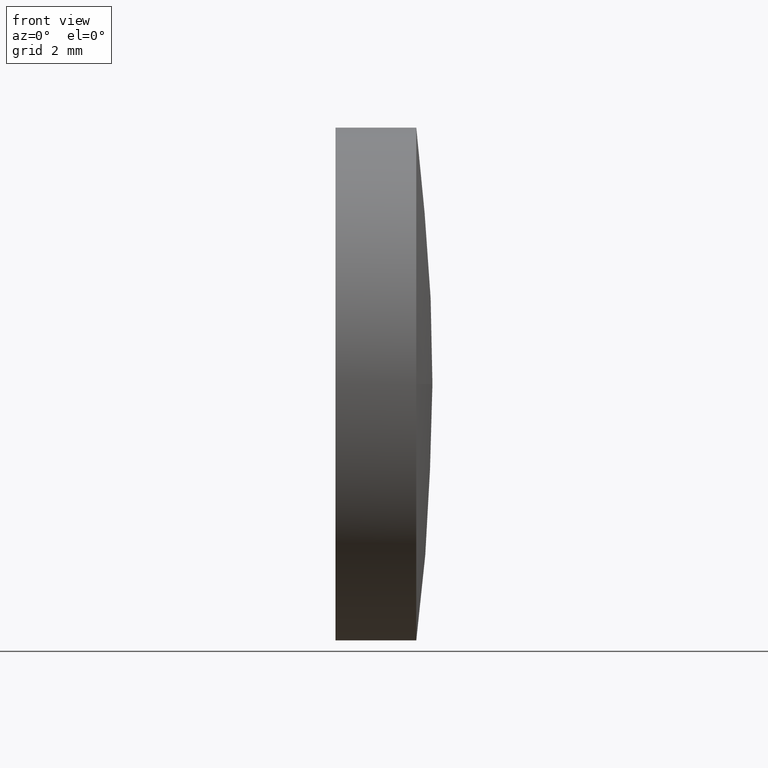
[diagram: clean part render]
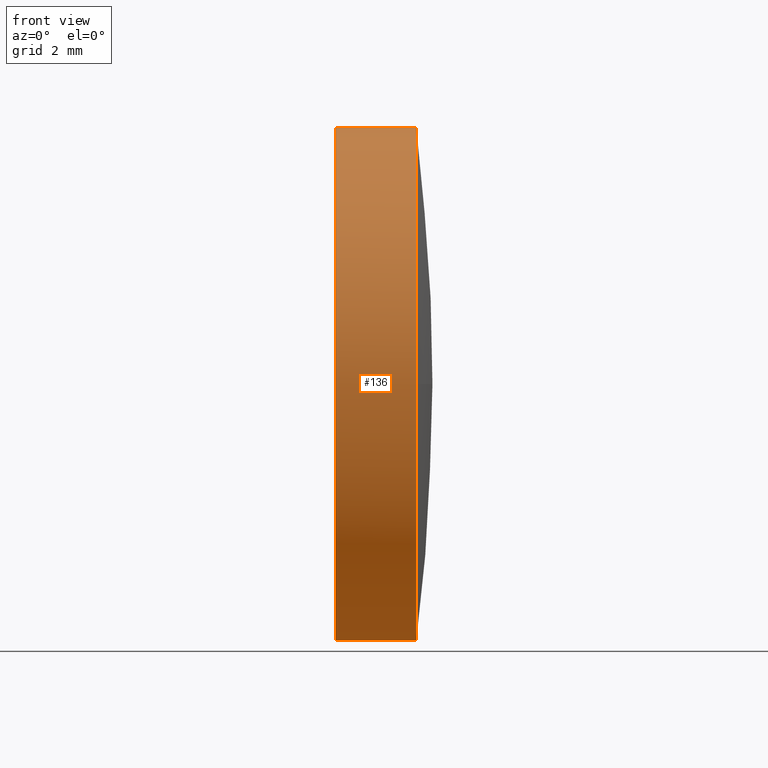
[diagram: same view with one face highlighted and labeled with its STEP entity id]
A machine part, front view. The second image highlights one B-rep face of the part: STEP entity #136.
In plain terms, the highlighted cylindrical surface (partial cylindrical patch) has radius 6.35 mm, axis along (-1, -0, -0).
Its self-contained STEP definition (entity closure, byte-faithful):
#2 = CARTESIAN_POINT ( 'NONE',  ( 461.7612449843627500, 237.4846222433156100, -6.349999999999994300 ) ) ;
#3 = CARTESIAN_POINT ( 'NONE',  ( 459.7612449843627500, 237.4846222433156100, -6.349999999999994300 ) ) ;
#11 = CARTESIAN_POINT ( 'NONE',  ( 457.5007138385082600, 237.4846222433156100, -6.349999999999994300 ) ) ;
#13 = CARTESIAN_POINT ( 'NONE',  ( 461.7612449843627500, 237.4846222433156100, 0.0000000000000000000 ) ) ;
#14 = DIRECTION ( 'NONE',  ( 0.0000000000000000000, 0.0000000000000000000, 1.000000000000000000 ) ) ;
#15 = ORIENTED_EDGE ( 'NONE', *, *, #70, .F. ) ;
#21 = VERTEX_POINT ( 'NONE', #2 ) ;
#23 = EDGE_CURVE ( 'NONE', #21, #50, #83, .T. ) ;
#28 = CARTESIAN_POINT ( 'NONE',  ( 459.7612449843627500, 237.4846222433156100, 0.0000000000000000000 ) ) ;
#34 = CYLINDRICAL_SURFACE ( 'NONE', #68, 6.349999999999994300 ) ;
#35 = DIRECTION ( 'NONE',  ( 0.0000000000000000000, 0.0000000000000000000, 1.000000000000000000 ) ) ;
#36 = VECTOR ( 'NONE', #66, 1000.000000000000000 ) ;
#37 = ORIENTED_EDGE ( 'NONE', *, *, #145, .F. ) ;
#39 = EDGE_LOOP ( 'NONE', ( #37, #157, #96, #142, #15 ) ) ;
#40 = DIRECTION ( 'NONE',  ( -1.000000000000000000, -0.0000000000000000000, -0.0000000000000000000 ) ) ;
#42 = DIRECTION ( 'NONE',  ( 0.0000000000000000000, 0.0000000000000000000, 1.000000000000000000 ) ) ;
#50 = VERTEX_POINT ( 'NONE', #54 ) ;
#54 = CARTESIAN_POINT ( 'NONE',  ( 461.7612449843627500, 231.1346222433157000, 0.0000000000000000000 ) ) ;
#56 = CIRCLE ( 'NONE', #175, 6.349999999999994300 ) ;
#59 = CARTESIAN_POINT ( 'NONE',  ( 461.7612449843627500, 237.4846222433156100, 6.349999999999994300 ) ) ;
#61 = CIRCLE ( 'NONE', #86, 6.349999999999994300 ) ;
#62 = DIRECTION ( 'NONE',  ( -1.000000000000000000, -0.0000000000000000000, -0.0000000000000000000 ) ) ;
#66 = DIRECTION ( 'NONE',  ( -1.000000000000000000, -0.0000000000000000000, -0.0000000000000000000 ) ) ;
#67 = VECTOR ( 'NONE', #162, 1000.000000000000000 ) ;
#68 = AXIS2_PLACEMENT_3D ( 'NONE', #103, #40, #42 ) ;
#70 = EDGE_CURVE ( 'NONE', #72, #163, #56, .T. ) ;
#72 = VERTEX_POINT ( 'NONE', #3 ) ;
#80 = VERTEX_POINT ( 'NONE', #59 ) ;
#83 = CIRCLE ( 'NONE', #106, 6.349999999999994300 ) ;
#86 = AXIS2_PLACEMENT_3D ( 'NONE', #13, #171, #120 ) ;
#90 = LINE ( 'NONE', #159, #36 ) ;
#96 = ORIENTED_EDGE ( 'NONE', *, *, #141, .T. ) ;
#98 = CARTESIAN_POINT ( 'NONE',  ( 461.7612449843627500, 237.4846222433156100, 0.0000000000000000000 ) ) ;
#103 = CARTESIAN_POINT ( 'NONE',  ( 457.5007138385082600, 237.4846222433156100, 0.0000000000000000000 ) ) ;
#104 = FACE_OUTER_BOUND ( 'NONE', #39, .T. ) ;
#106 = AXIS2_PLACEMENT_3D ( 'NONE', #98, #128, #35 ) ;
#120 = DIRECTION ( 'NONE',  ( 0.0000000000000000000, 0.0000000000000000000, 1.000000000000000000 ) ) ;
#125 = LINE ( 'NONE', #11, #67 ) ;
#128 = DIRECTION ( 'NONE',  ( -1.000000000000000000, -0.0000000000000000000, -0.0000000000000000000 ) ) ;
#136 = ADVANCED_FACE ( 'NONE', ( #104 ), #34, .T. ) ;
#141 = EDGE_CURVE ( 'NONE', #50, #80, #61, .T. ) ;
#142 = ORIENTED_EDGE ( 'NONE', *, *, #158, .T. ) ;
#145 = EDGE_CURVE ( 'NONE', #21, #72, #125, .T. ) ;
#152 = CARTESIAN_POINT ( 'NONE',  ( 459.7612449843627500, 237.4846222433156100, 6.349999999999994300 ) ) ;
#157 = ORIENTED_EDGE ( 'NONE', *, *, #23, .T. ) ;
#158 = EDGE_CURVE ( 'NONE', #80, #163, #90, .T. ) ;
#159 = CARTESIAN_POINT ( 'NONE',  ( 457.5007138385082600, 237.4846222433156100, 6.349999999999994300 ) ) ;
#162 = DIRECTION ( 'NONE',  ( -1.000000000000000000, -0.0000000000000000000, -0.0000000000000000000 ) ) ;
#163 = VERTEX_POINT ( 'NONE', #152 ) ;
#171 = DIRECTION ( 'NONE',  ( -1.000000000000000000, -0.0000000000000000000, -0.0000000000000000000 ) ) ;
#175 = AXIS2_PLACEMENT_3D ( 'NONE', #28, #62, #14 ) ;